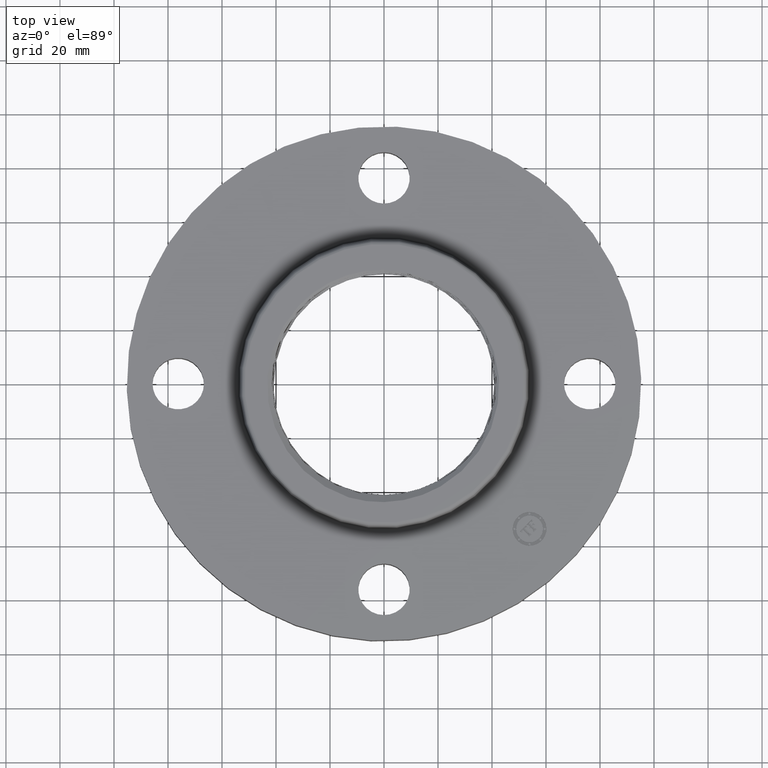
[diagram: clean part render]
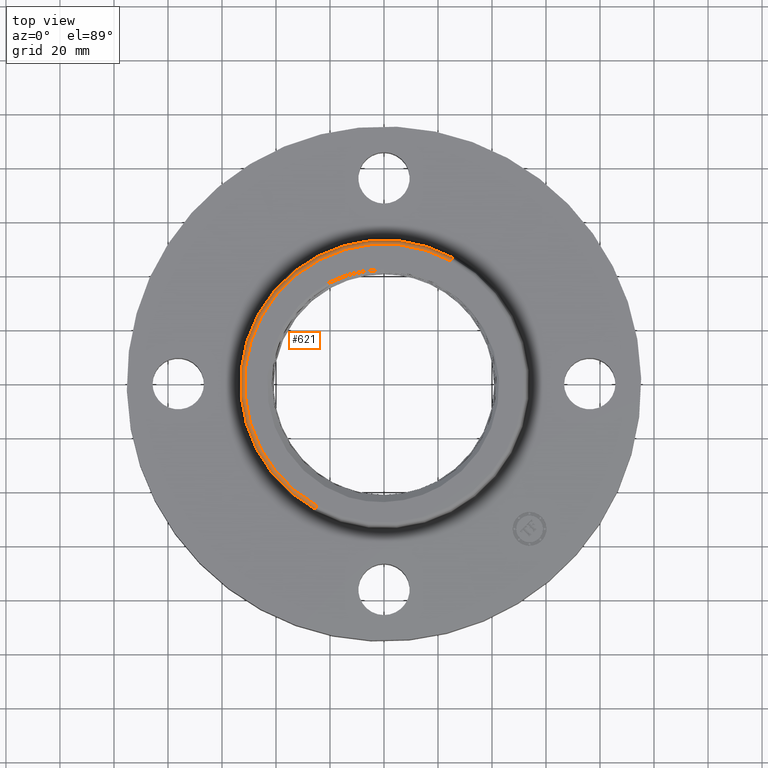
[diagram: same view with one face highlighted and labeled with its STEP entity id]
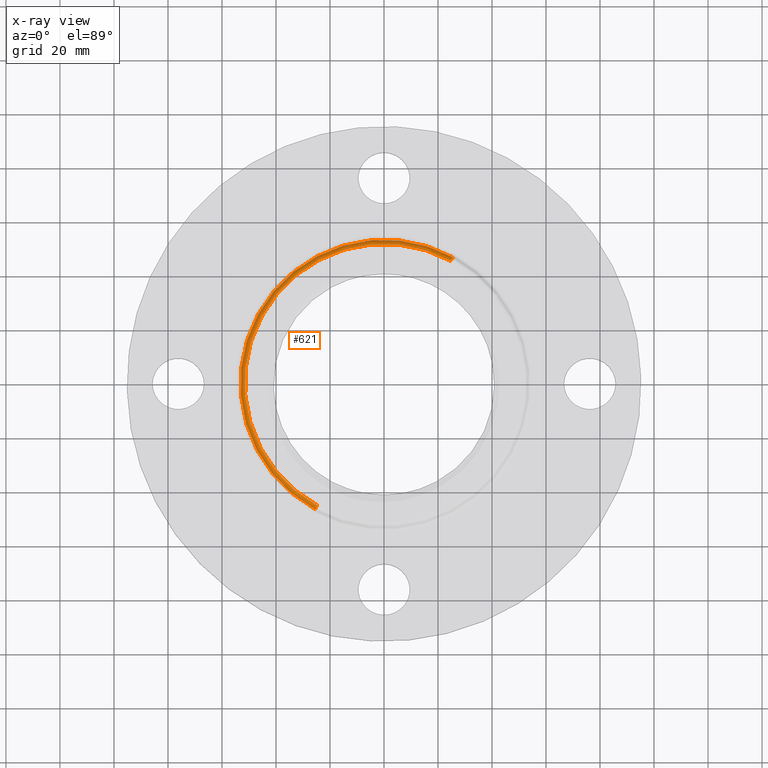
[diagram: x-ray of the same camera — body ghosted, the highlighted face saturated]
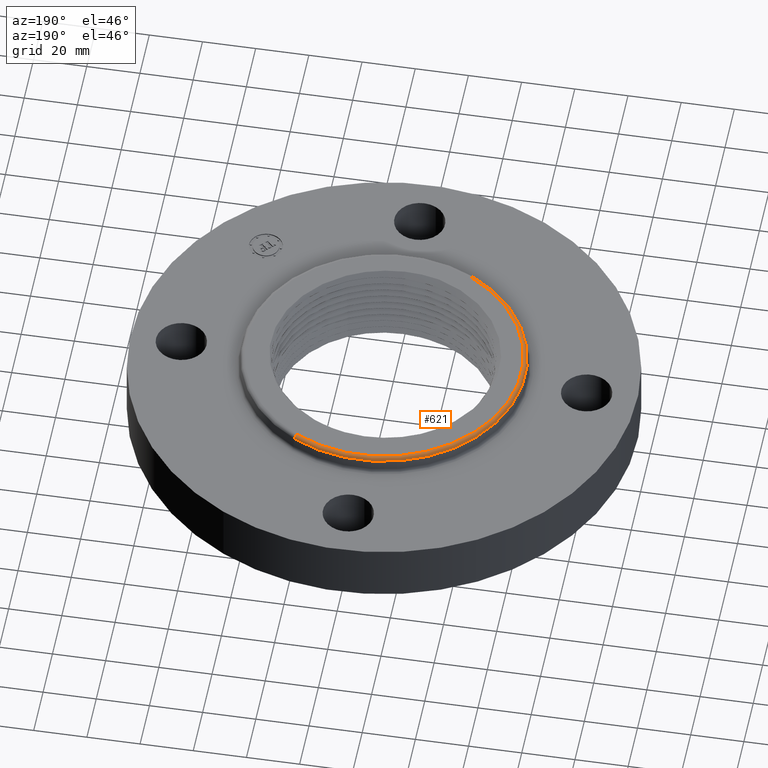
[diagram: same view with one face highlighted and labeled with its STEP entity id]
A machine part, top view. The second image highlights one B-rep face of the part: STEP entity #621.
The next image is the same camera in x-ray: the body ghosted, the highlighted face saturated — about 0% of this face is hidden behind the body in this view.
A second angle (auxiliary view) of the same face is appended — the face is thin or edge-on in the first view.
In plain terms, the highlighted toroidal blend (fillet) surface has major radius 51.6213 mm and minor (blend) radius 1.524 mm.
Its self-contained STEP definition (entity closure, byte-faithful):
#196=AXIS2_PLACEMENT_3D('Circle Axis2P3D',#194,#195,$) ;
#594=AXIS2_PLACEMENT_3D('Torus Axis2P3D',#591,#592,#593) ;
#598=AXIS2_PLACEMENT_3D('Circle Axis2P3D',#596,#597,$) ;
#607=AXIS2_PLACEMENT_3D('Circle Axis2P3D',#605,#606,$) ;
#612=AXIS2_PLACEMENT_3D('Circle Axis2P3D',#610,#611,$) ;
#189=CARTESIAN_POINT('Vertex',(0.974353564133,1.78354223575,1.12)) ;
#191=CARTESIAN_POINT('Vertex',(-0.974353564133,-1.78354223575,1.12)) ;
#194=CARTESIAN_POINT('Axis2P3D Location',(0.,0.,1.12)) ;
#591=CARTESIAN_POINT('Axis2P3D Location',(0.,0.,1.06)) ;
#596=CARTESIAN_POINT('Axis2P3D Location',(0.,0.,1.07041889066)) ;
#600=CARTESIAN_POINT('Vertex',(-1.00268208338,-1.8353972424,1.07041889066)) ;
#602=CARTESIAN_POINT('Vertex',(1.00268208338,1.8353972424,1.07041889066)) ;
#605=CARTESIAN_POINT('Axis2P3D Location',(-0.974353564133,-1.78354223575,1.06)) ;
#610=CARTESIAN_POINT('Axis2P3D Location',(0.974353564133,1.78354223575,1.06)) ;
#195=DIRECTION('Axis2P3D Direction',(0.,0.,-0.0393700787402)) ;
#592=DIRECTION('Axis2P3D Direction',(0.,0.,-0.0393700787402)) ;
#593=DIRECTION('Axis2P3D XDirection',(0.0188750212049,0.0345504945626,0.)) ;
#597=DIRECTION('Axis2P3D Direction',(0.,0.,-0.0393700787402)) ;
#606=DIRECTION('Axis2P3D Direction',(0.0345504945626,-0.0188750212049,0.)) ;
#611=DIRECTION('Axis2P3D Direction',(-0.0345504945626,0.0188750212049,0.)) ;
#616=ORIENTED_EDGE('',*,*,#604,.F.) ;
#617=ORIENTED_EDGE('',*,*,#609,.T.) ;
#618=ORIENTED_EDGE('',*,*,#198,.T.) ;
#619=ORIENTED_EDGE('',*,*,#614,.F.) ;
#621=ADVANCED_FACE('PartBody',(#620),#595,.T.) ;
#197=CIRCLE('generated circle',#196,2.03233554677) ;
#599=CIRCLE('generated circle',#598,2.09142401195) ;
#608=CIRCLE('generated circle',#607,0.0600000000002) ;
#613=CIRCLE('generated circle',#612,0.0600000000002) ;
#595=TOROIDAL_SURFACE('homeo Torus',#594,2.03233554677,0.0600000000002) ;
#198=EDGE_CURVE('',#192,#190,#197,.T.) ;
#604=EDGE_CURVE('',#601,#603,#599,.T.) ;
#609=EDGE_CURVE('',#601,#192,#608,.F.) ;
#614=EDGE_CURVE('',#603,#190,#613,.F.) ;
#615=EDGE_LOOP('',(#616,#617,#618,#619)) ;
#620=FACE_OUTER_BOUND('',#615,.T.) ;
#190=VERTEX_POINT('',#189) ;
#192=VERTEX_POINT('',#191) ;
#601=VERTEX_POINT('',#600) ;
#603=VERTEX_POINT('',#602) ;